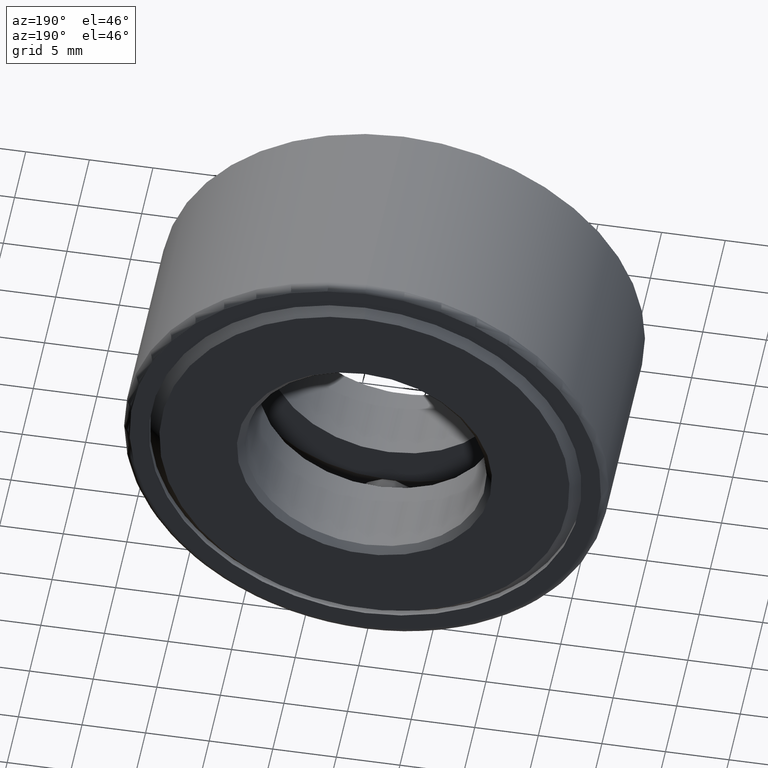
[diagram: clean part render]
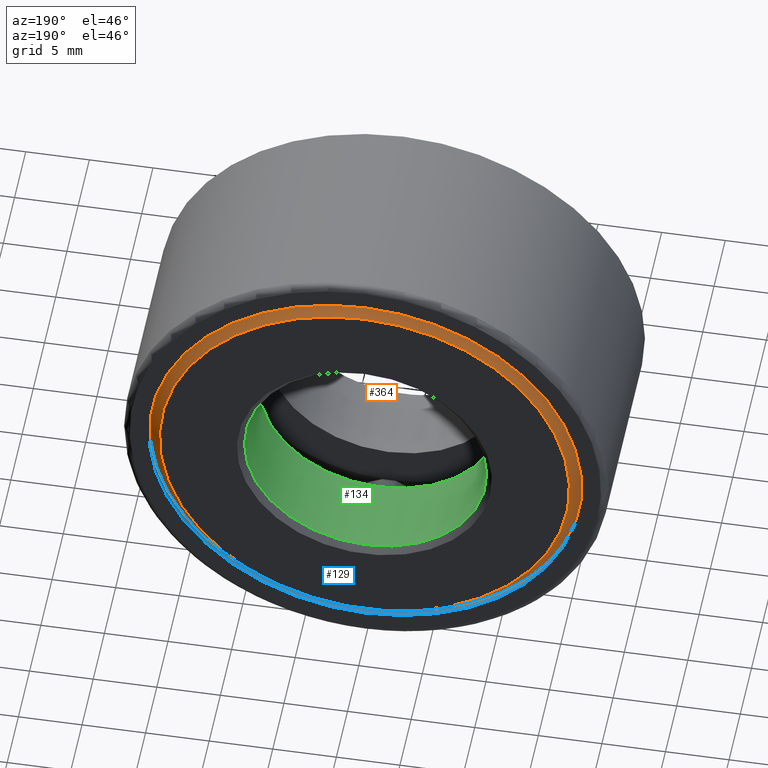
[diagram: same view with three faces highlighted in distinct colors, each labeled with its STEP entity id]
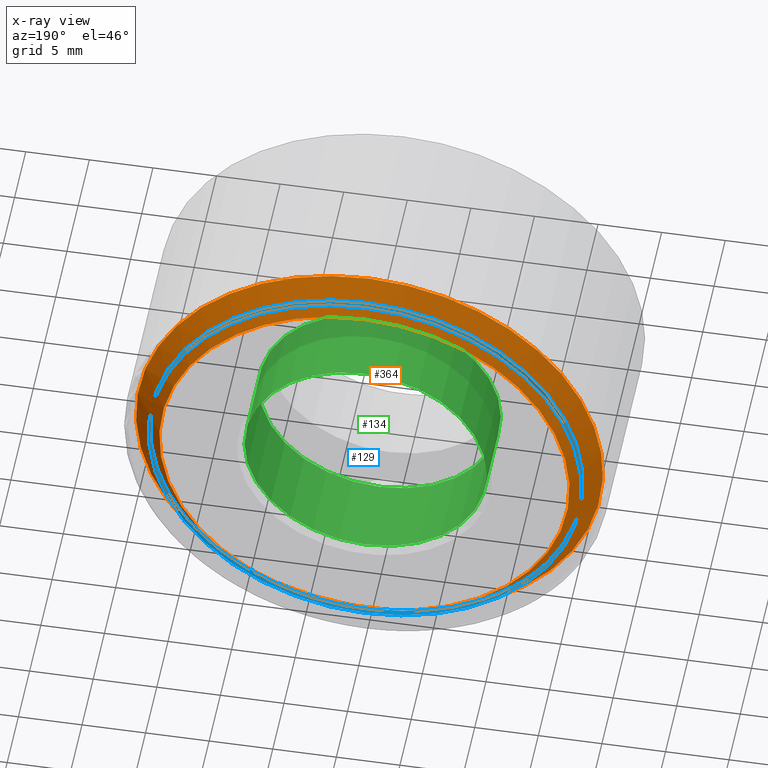
[diagram: x-ray of the same camera — body ghosted, the three highlighted faces saturated]
A machine part, auxiliary view with three faces highlighted in distinct colors.
The next image is the same camera in x-ray (body ghosted, the three faces saturated) — at least one of them is partly hidden behind the body in this view.
Their STEP definitions:

[orange] entity #364 — the highlighted conical surface has half-angle 45 deg.
#29 = EDGE_LOOP ( 'NONE', ( #164 ) ) ;
#38 = CARTESIAN_POINT ( 'NONE',  ( 0.0000000000000000000, 0.6875000000000000000, 0.0000000000000000000 ) ) ;
#43 = DIRECTION ( 'NONE',  ( -0.0000000000000000000, 1.000000000000000000, -0.0000000000000000000 ) ) ;
#76 = FACE_BOUND ( 'NONE', #540, .T. ) ;
#94 = CONICAL_SURFACE ( 'NONE', #369, 0.6349999999999997900, 0.7853981633974490600 ) ;
#117 = CIRCLE ( 'NONE', #486, 0.6349999999999997900 ) ;
#126 = VERTEX_POINT ( 'NONE', #441 ) ;
#136 = CIRCLE ( 'NONE', #234, 0.7229999999999997500 ) ;
#145 = DIRECTION ( 'NONE',  ( 0.0000000000000000000, -1.000000000000000000, 0.0000000000000000000 ) ) ;
#164 = ORIENTED_EDGE ( 'NONE', *, *, #390, .T. ) ;
#171 = CARTESIAN_POINT ( 'NONE',  ( 0.0000000000000000000, 0.5995000000000001400, 0.7229999999999997500 ) ) ;
#194 = DIRECTION ( 'NONE',  ( 0.0000000000000000000, 0.0000000000000000000, 1.000000000000000000 ) ) ;
#210 = FACE_OUTER_BOUND ( 'NONE', #29, .T. ) ;
#220 = EDGE_CURVE ( 'NONE', #126, #126, #117, .T. ) ;
#231 = VERTEX_POINT ( 'NONE', #171 ) ;
#234 = AXIS2_PLACEMENT_3D ( 'NONE', #283, #288, #194 ) ;
#283 = CARTESIAN_POINT ( 'NONE',  ( 0.0000000000000000000, 0.5995000000000001400, 0.0000000000000000000 ) ) ;
#288 = DIRECTION ( 'NONE',  ( -0.0000000000000000000, 1.000000000000000000, -0.0000000000000000000 ) ) ;
#300 = ORIENTED_EDGE ( 'NONE', *, *, #220, .F. ) ;
#321 = DIRECTION ( 'NONE',  ( 0.0000000000000000000, 0.0000000000000000000, -1.000000000000000000 ) ) ;
#359 = DIRECTION ( 'NONE',  ( 0.0000000000000000000, 0.0000000000000000000, 1.000000000000000000 ) ) ;
#364 = ADVANCED_FACE ( 'NONE', ( #210, #76 ), #94, .T. ) ;
#369 = AXIS2_PLACEMENT_3D ( 'NONE', #565, #145, #321 ) ;
#390 = EDGE_CURVE ( 'NONE', #231, #231, #136, .T. ) ;
#441 = CARTESIAN_POINT ( 'NONE',  ( 0.0000000000000000000, 0.6875000000000000000, 0.6349999999999997900 ) ) ;
#486 = AXIS2_PLACEMENT_3D ( 'NONE', #38, #43, #359 ) ;
#540 = EDGE_LOOP ( 'NONE', ( #300 ) ) ;
#565 = CARTESIAN_POINT ( 'NONE',  ( 0.0000000000000000000, 0.6875000000000000000, 0.0000000000000000000 ) ) ;

[blue] entity #129 — the highlighted cylindrical surface (bore or boss wall) has radius 17.018 mm, axis along (-0, 1, -0).
#14 = AXIS2_PLACEMENT_3D ( 'NONE', #363, #49, #187 ) ;
#41 = ORIENTED_EDGE ( 'NONE', *, *, #201, .F. ) ;
#49 = DIRECTION ( 'NONE',  ( -0.0000000000000000000, 1.000000000000000000, -0.0000000000000000000 ) ) ;
#78 = AXIS2_PLACEMENT_3D ( 'NONE', #465, #422, #188 ) ;
#85 = VERTEX_POINT ( 'NONE', #449 ) ;
#102 = DIRECTION ( 'NONE',  ( -0.0000000000000000000, 1.000000000000000000, -0.0000000000000000000 ) ) ;
#104 = FACE_OUTER_BOUND ( 'NONE', #203, .T. ) ;
#121 = EDGE_CURVE ( 'NONE', #242, #242, #236, .T. ) ;
#129 = ADVANCED_FACE ( 'NONE', ( #584, #104 ), #327, .F. ) ;
#143 = DIRECTION ( 'NONE',  ( 0.0000000000000000000, 0.0000000000000000000, 1.000000000000000000 ) ) ;
#154 = ORIENTED_EDGE ( 'NONE', *, *, #121, .T. ) ;
#187 = DIRECTION ( 'NONE',  ( 0.0000000000000000000, 0.0000000000000000000, 1.000000000000000000 ) ) ;
#188 = DIRECTION ( 'NONE',  ( 0.0000000000000000000, 0.0000000000000000000, 1.000000000000000000 ) ) ;
#190 = EDGE_LOOP ( 'NONE', ( #41 ) ) ;
#201 = EDGE_CURVE ( 'NONE', #85, #85, #298, .T. ) ;
#203 = EDGE_LOOP ( 'NONE', ( #154 ) ) ;
#236 = CIRCLE ( 'NONE', #78, 0.6700000000000000400 ) ;
#242 = VERTEX_POINT ( 'NONE', #251 ) ;
#251 = CARTESIAN_POINT ( 'NONE',  ( 0.0000000000000000000, 0.6724999999999998800, 0.6700000000000000400 ) ) ;
#298 = CIRCLE ( 'NONE', #14, 0.6700000000000000400 ) ;
#317 = CARTESIAN_POINT ( 'NONE',  ( 0.0000000000000000000, 0.0000000000000000000, 0.0000000000000000000 ) ) ;
#327 = CYLINDRICAL_SURFACE ( 'NONE', #424, 0.6700000000000000400 ) ;
#363 = CARTESIAN_POINT ( 'NONE',  ( 0.0000000000000000000, 0.6524999999999997500, 0.0000000000000000000 ) ) ;
#422 = DIRECTION ( 'NONE',  ( -0.0000000000000000000, 1.000000000000000000, -0.0000000000000000000 ) ) ;
#424 = AXIS2_PLACEMENT_3D ( 'NONE', #317, #102, #143 ) ;
#449 = CARTESIAN_POINT ( 'NONE',  ( 0.0000000000000000000, 0.6524999999999997500, 0.6700000000000000400 ) ) ;
#465 = CARTESIAN_POINT ( 'NONE',  ( 0.0000000000000000000, 0.6724999999999998800, 0.0000000000000000000 ) ) ;
#584 = FACE_OUTER_BOUND ( 'NONE', #190, .T. ) ;

[green] entity #134 — the highlighted cylindrical surface (bore or boss wall) has radius 9.525 mm, axis along (-0, 1, -0).
#7 = FACE_OUTER_BOUND ( 'NONE', #10, .T. ) ;
#8 = VERTEX_POINT ( 'NONE', #25 ) ;
#10 = EDGE_LOOP ( 'NONE', ( #103 ) ) ;
#25 = CARTESIAN_POINT ( 'NONE',  ( 0.0000000000000000000, 0.4187499999999998400, 0.3750000000000001100 ) ) ;
#72 = AXIS2_PLACEMENT_3D ( 'NONE', #413, #139, #470 ) ;
#103 = ORIENTED_EDGE ( 'NONE', *, *, #239, .T. ) ;
#112 = CIRCLE ( 'NONE', #376, 0.3750000000000001100 ) ;
#119 = CARTESIAN_POINT ( 'NONE',  ( 0.0000000000000000000, 0.6674999999999998700, 0.3750000000000001100 ) ) ;
#134 = ADVANCED_FACE ( 'NONE', ( #7, #387 ), #316, .F. ) ;
#138 = CARTESIAN_POINT ( 'NONE',  ( 0.0000000000000000000, 0.6674999999999998700, 0.0000000000000000000 ) ) ;
#139 = DIRECTION ( 'NONE',  ( -0.0000000000000000000, 1.000000000000000000, -0.0000000000000000000 ) ) ;
#142 = ORIENTED_EDGE ( 'NONE', *, *, #199, .F. ) ;
#165 = VERTEX_POINT ( 'NONE', #119 ) ;
#185 = DIRECTION ( 'NONE',  ( 0.0000000000000000000, 0.0000000000000000000, 1.000000000000000000 ) ) ;
#199 = EDGE_CURVE ( 'NONE', #8, #8, #202, .T. ) ;
#202 = CIRCLE ( 'NONE', #347, 0.3750000000000001100 ) ;
#239 = EDGE_CURVE ( 'NONE', #165, #165, #112, .T. ) ;
#256 = DIRECTION ( 'NONE',  ( 0.0000000000000000000, 0.0000000000000000000, 1.000000000000000000 ) ) ;
#316 = CYLINDRICAL_SURFACE ( 'NONE', #72, 0.3750000000000001100 ) ;
#347 = AXIS2_PLACEMENT_3D ( 'NONE', #473, #515, #185 ) ;
#376 = AXIS2_PLACEMENT_3D ( 'NONE', #138, #462, #256 ) ;
#387 = FACE_OUTER_BOUND ( 'NONE', #601, .T. ) ;
#413 = CARTESIAN_POINT ( 'NONE',  ( 0.0000000000000000000, 0.0000000000000000000, 0.0000000000000000000 ) ) ;
#462 = DIRECTION ( 'NONE',  ( -0.0000000000000000000, 1.000000000000000000, -0.0000000000000000000 ) ) ;
#470 = DIRECTION ( 'NONE',  ( 0.0000000000000000000, 0.0000000000000000000, 1.000000000000000000 ) ) ;
#473 = CARTESIAN_POINT ( 'NONE',  ( 0.0000000000000000000, 0.4187499999999998400, 0.0000000000000000000 ) ) ;
#515 = DIRECTION ( 'NONE',  ( -0.0000000000000000000, 1.000000000000000000, -0.0000000000000000000 ) ) ;
#601 = EDGE_LOOP ( 'NONE', ( #142 ) ) ;